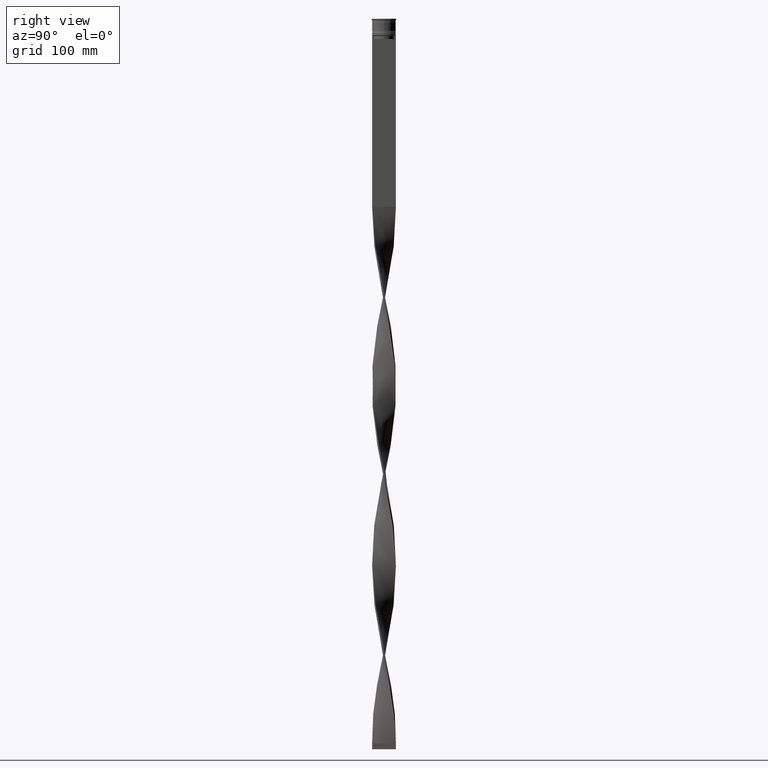
[diagram: clean part render]
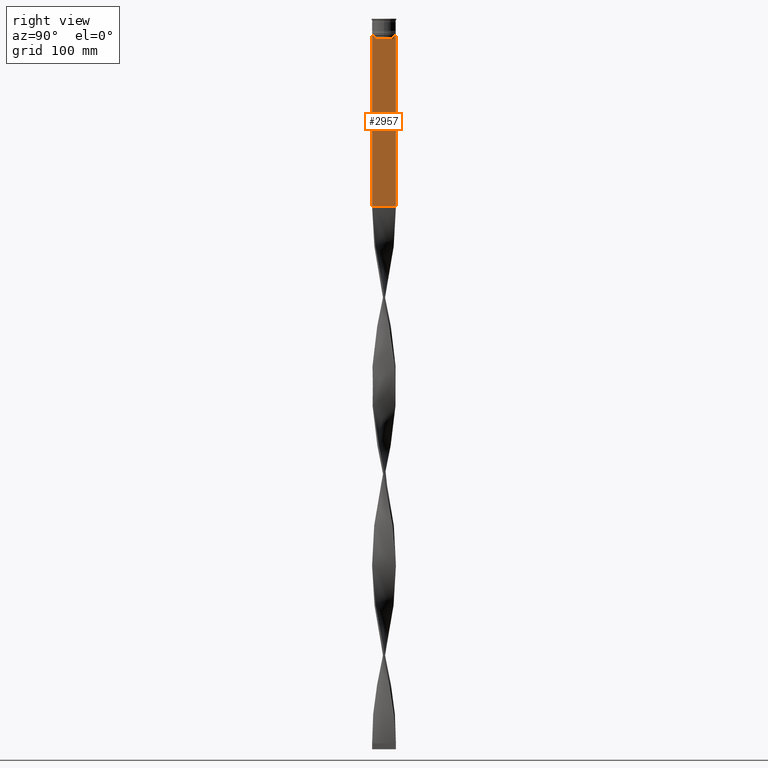
[diagram: same view with one face highlighted and labeled with its STEP entity id]
A machine part, right view. The second image highlights one B-rep face of the part: STEP entity #2957.
In plain terms, the highlighted planar face has unit normal (-1, 0, 0).
Its self-contained STEP definition (entity closure, byte-faithful):
#4 = VECTOR ( 'NONE', #2269, 1000.000000000000000 ) ;
#26 = CARTESIAN_POINT ( 'NONE',  ( 0.7500000000000001110, 8.366450860430608927, -17.00000000000000000 ) ) ;
#41 = DIRECTION ( 'NONE',  ( -0.000000000000000000, -0.000000000000000000, 1.000000000000000000 ) ) ;
#64 = LINE ( 'NONE', #4304, #2011 ) ;
#68 = CARTESIAN_POINT ( 'NONE',  ( 0.7500000000000001110, -8.366450860430608927, -17.00000000000000000 ) ) ;
#238 = VECTOR ( 'NONE', #650, 1000.000000000000000 ) ;
#323 = B_SPLINE_CURVE_WITH_KNOTS ( 'NONE', 3,
 ( #4197, #3537, #1027, #2432 ),
 .UNSPECIFIED., .F., .F.,
 ( 4, 4 ),
 ( 0.01512225952876174867, 0.01583070519299695222 ),
 .UNSPECIFIED. ) ;
#366 = VECTOR ( 'NONE', #2617, 1000.000000000000000 ) ;
#426 = CARTESIAN_POINT ( 'NONE',  ( 0.7500000000000001110, 9.999999999999998224, 6.056171120131581098 ) ) ;
#482 = CARTESIAN_POINT ( 'NONE',  ( 0.7500000000000001110, -8.868342573446296839, -14.00000000000000178 ) ) ;
#603 = FACE_OUTER_BOUND ( 'NONE', #2657, .T. ) ;
#650 = DIRECTION ( 'NONE',  ( 0.000000000000000000, -1.000000000000000000, 0.000000000000000000 ) ) ;
#668 = DIRECTION ( 'NONE',  ( 0.000000000000000000, 0.000000000000000000, 1.000000000000000000 ) ) ;
#714 = DIRECTION ( 'NONE',  ( 0.000000000000000000, -1.000000000000000000, 0.000000000000000000 ) ) ;
#722 = CARTESIAN_POINT ( 'NONE',  ( 0.7500000000000001110, -8.701063080777121428, -14.16668447713511725 ) ) ;
#750 = VERTEX_POINT ( 'NONE', #3654 ) ;
#790 = CARTESIAN_POINT ( 'NONE',  ( 0.7500000000000001110, -9.871550030263739117, -14.00000000000000178 ) ) ;
#795 = VERTEX_POINT ( 'NONE', #1246 ) ;
#806 = LINE ( 'NONE', #3646, #366 ) ;
#940 = EDGE_CURVE ( 'NONE', #2608, #795, #1176, .T. ) ;
#957 = ORIENTED_EDGE ( 'NONE', *, *, #2053, .T. ) ;
#1020 = PLANE ( 'NONE',  #4085 ) ;
#1027 = CARTESIAN_POINT ( 'NONE',  ( 0.7500000000000001110, 8.533766897779925031, -14.33335221373273605 ) ) ;
#1176 = LINE ( 'NONE', #426, #2147 ) ;
#1229 = CARTESIAN_POINT ( 'NONE',  ( 0.7500000000000001110, 8.366450860430608927, 0.000000000000000000 ) ) ;
#1246 = CARTESIAN_POINT ( 'NONE',  ( 0.7500000000000002220, 9.999999999999998224, -157.9999999999999716 ) ) ;
#1324 = LINE ( 'NONE', #2760, #4153 ) ;
#1346 = EDGE_CURVE ( 'NONE', #2625, #3615, #3271, .T. ) ;
#1357 = CARTESIAN_POINT ( 'NONE',  ( 0.7500000000000001110, -8.366450860430608927, -14.50000000000000000 ) ) ;
#1496 = ORIENTED_EDGE ( 'NONE', *, *, #1572, .T. ) ;
#1500 = DIRECTION ( 'NONE',  ( 0.000000000000000000, -1.000000000000000000, 0.000000000000000000 ) ) ;
#1521 = CARTESIAN_POINT ( 'NONE',  ( 0.7500000000000001110, 8.366450860430608927, -14.50000000000000000 ) ) ;
#1572 = EDGE_CURVE ( 'NONE', #2608, #4540, #2227, .T. ) ;
#1595 = VERTEX_POINT ( 'NONE', #1521 ) ;
#1612 = ORIENTED_EDGE ( 'NONE', *, *, #2284, .T. ) ;
#1640 = VERTEX_POINT ( 'NONE', #4388 ) ;
#1655 = CARTESIAN_POINT ( 'NONE',  ( 0.7500000000000001110, 8.400000000000003908, -17.00000000000000000 ) ) ;
#1675 = CARTESIAN_POINT ( 'NONE',  ( 0.7500000000000001110, -10.00000000000000533, -14.00000000000000178 ) ) ;
#1720 = CARTESIAN_POINT ( 'NONE',  ( 0.7500000000000001110, -8.533766903463440912, -14.33335220807192023 ) ) ;
#1797 = CARTESIAN_POINT ( 'NONE',  ( 0.7500000000000001110, -10.00000000000000533, -14.00000000000000178 ) ) ;
#1841 = ORIENTED_EDGE ( 'NONE', *, *, #3642, .T. ) ;
#1949 = CARTESIAN_POINT ( 'NONE',  ( 0.7500000000000001110, 9.871550030263739117, -14.00000000000000178 ) ) ;
#2009 = CARTESIAN_POINT ( 'NONE',  ( 0.7500000000000001110, -10.00000000000000533, 6.056171120131581098 ) ) ;
#2011 = VECTOR ( 'NONE', #41, 1000.000000000000000 ) ;
#2032 = LINE ( 'NONE', #1675, #3557 ) ;
#2053 = EDGE_CURVE ( 'NONE', #750, #1595, #323, .T. ) ;
#2092 = CARTESIAN_POINT ( 'NONE',  ( 0.7500000000000001110, -10.00000000000000533, -14.00000000000000178 ) ) ;
#2147 = VECTOR ( 'NONE', #2626, 1000.000000000000000 ) ;
#2227 = LINE ( 'NONE', #3264, #3190 ) ;
#2269 = DIRECTION ( 'NONE',  ( 0.000000000000000000, 1.000000000000000000, 0.000000000000000000 ) ) ;
#2283 = ORIENTED_EDGE ( 'NONE', *, *, #3232, .T. ) ;
#2284 = EDGE_CURVE ( 'NONE', #1640, #795, #3233, .T. ) ;
#2322 = ORIENTED_EDGE ( 'NONE', *, *, #1346, .T. ) ;
#2342 = ORIENTED_EDGE ( 'NONE', *, *, #3927, .T. ) ;
#2367 = ORIENTED_EDGE ( 'NONE', *, *, #3094, .T. ) ;
#2432 = CARTESIAN_POINT ( 'NONE',  ( 0.7500000000000001110, 8.366450860430608927, -14.50000000000000000 ) ) ;
#2444 = VECTOR ( 'NONE', #714, 1000.000000000000000 ) ;
#2474 = EDGE_CURVE ( 'NONE', #3615, #4112, #806, .T. ) ;
#2491 = ORIENTED_EDGE ( 'NONE', *, *, #3806, .T. ) ;
#2559 = VERTEX_POINT ( 'NONE', #1797 ) ;
#2608 = VERTEX_POINT ( 'NONE', #2955 ) ;
#2617 = DIRECTION ( 'NONE',  ( 0.000000000000000000, -1.000000000000000000, 0.000000000000000000 ) ) ;
#2625 = VERTEX_POINT ( 'NONE', #4378 ) ;
#2626 = DIRECTION ( 'NONE',  ( 0.000000000000000000, 0.000000000000000000, -1.000000000000000000 ) ) ;
#2657 = EDGE_LOOP ( 'NONE', ( #2283, #957, #1841, #2342, #3655, #2322, #3599, #2491, #2367, #1612, #2758, #1496 ) ) ;
#2758 = ORIENTED_EDGE ( 'NONE', *, *, #940, .F. ) ;
#2760 = CARTESIAN_POINT ( 'NONE',  ( 0.7500000000000001110, -10.00000000000000533, 6.056171120131581098 ) ) ;
#2769 = DIRECTION ( 'NONE',  ( 0.000000000000000000, -1.000000000000000000, 0.000000000000000000 ) ) ;
#2792 = LINE ( 'NONE', #1655, #238 ) ;
#2936 = CARTESIAN_POINT ( 'NONE',  ( 0.7500000000000001110, -10.00000000000000533, -157.9999999999999716 ) ) ;
#2955 = CARTESIAN_POINT ( 'NONE',  ( 0.7500000000000001110, 9.999999999999998224, -14.00000000000000178 ) ) ;
#2957 = ADVANCED_FACE ( 'NONE', ( #603 ), #1020, .F. ) ;
#3074 = DIRECTION ( 'NONE',  ( -1.000000000000000000, 0.000000000000000000, 0.000000000000000000 ) ) ;
#3094 = EDGE_CURVE ( 'NONE', #2559, #1640, #1324, .T. ) ;
#3141 = CARTESIAN_POINT ( 'NONE',  ( 0.7500000000000001110, -8.868342573446296839, -14.00000000000000178 ) ) ;
#3190 = VECTOR ( 'NONE', #1500, 1000.000000000000000 ) ;
#3232 = EDGE_CURVE ( 'NONE', #4540, #750, #3880, .T. ) ;
#3233 = LINE ( 'NONE', #2936, #4 ) ;
#3264 = CARTESIAN_POINT ( 'NONE',  ( 0.7500000000000001110, -10.00000000000000533, -14.00000000000000178 ) ) ;
#3271 = B_SPLINE_CURVE_WITH_KNOTS ( 'NONE', 3,
 ( #1357, #1720, #722, #3141 ),
 .UNSPECIFIED., .F., .F.,
 ( 4, 4 ),
 ( 0.03866293624047253963, 0.03937282246709320616 ),
 .UNSPECIFIED. ) ;
#3305 = LINE ( 'NONE', #1229, #4011 ) ;
#3493 = VERTEX_POINT ( 'NONE', #68 ) ;
#3537 = CARTESIAN_POINT ( 'NONE',  ( 0.7500000000000001110, 8.701063075415250481, -14.16668448247791545 ) ) ;
#3557 = VECTOR ( 'NONE', #2769, 1000.000000000000000 ) ;
#3599 = ORIENTED_EDGE ( 'NONE', *, *, #2474, .T. ) ;
#3615 = VERTEX_POINT ( 'NONE', #482 ) ;
#3642 = EDGE_CURVE ( 'NONE', #1595, #4308, #3305, .T. ) ;
#3646 = CARTESIAN_POINT ( 'NONE',  ( 0.7500000000000001110, -10.00000000000000533, -14.00000000000000178 ) ) ;
#3654 = CARTESIAN_POINT ( 'NONE',  ( 0.7500000000000001110, 8.868342573446296839, -14.00000000000000178 ) ) ;
#3655 = ORIENTED_EDGE ( 'NONE', *, *, #4045, .T. ) ;
#3731 = DIRECTION ( 'NONE',  ( 0.000000000000000000, 0.000000000000000000, -1.000000000000000000 ) ) ;
#3806 = EDGE_CURVE ( 'NONE', #4112, #2559, #2032, .T. ) ;
#3830 = DIRECTION ( 'NONE',  ( 0.000000000000000000, 0.000000000000000000, -1.000000000000000000 ) ) ;
#3880 = LINE ( 'NONE', #2092, #2444 ) ;
#3927 = EDGE_CURVE ( 'NONE', #4308, #3493, #2792, .T. ) ;
#4011 = VECTOR ( 'NONE', #3731, 1000.000000000000000 ) ;
#4045 = EDGE_CURVE ( 'NONE', #3493, #2625, #64, .T. ) ;
#4085 = AXIS2_PLACEMENT_3D ( 'NONE', #2009, #3074, #668 ) ;
#4112 = VERTEX_POINT ( 'NONE', #790 ) ;
#4153 = VECTOR ( 'NONE', #3830, 1000.000000000000000 ) ;
#4197 = CARTESIAN_POINT ( 'NONE',  ( 0.7500000000000001110, 8.868342573446296839, -14.00000000000000178 ) ) ;
#4304 = CARTESIAN_POINT ( 'NONE',  ( 0.7500000000000001110, -8.366450860430608927, 0.000000000000000000 ) ) ;
#4308 = VERTEX_POINT ( 'NONE', #26 ) ;
#4378 = CARTESIAN_POINT ( 'NONE',  ( 0.7500000000000001110, -8.366450860430608927, -14.50000000000000000 ) ) ;
#4388 = CARTESIAN_POINT ( 'NONE',  ( 0.7500000000000001110, -10.00000000000000533, -157.9999999999999716 ) ) ;
#4540 = VERTEX_POINT ( 'NONE', #1949 ) ;